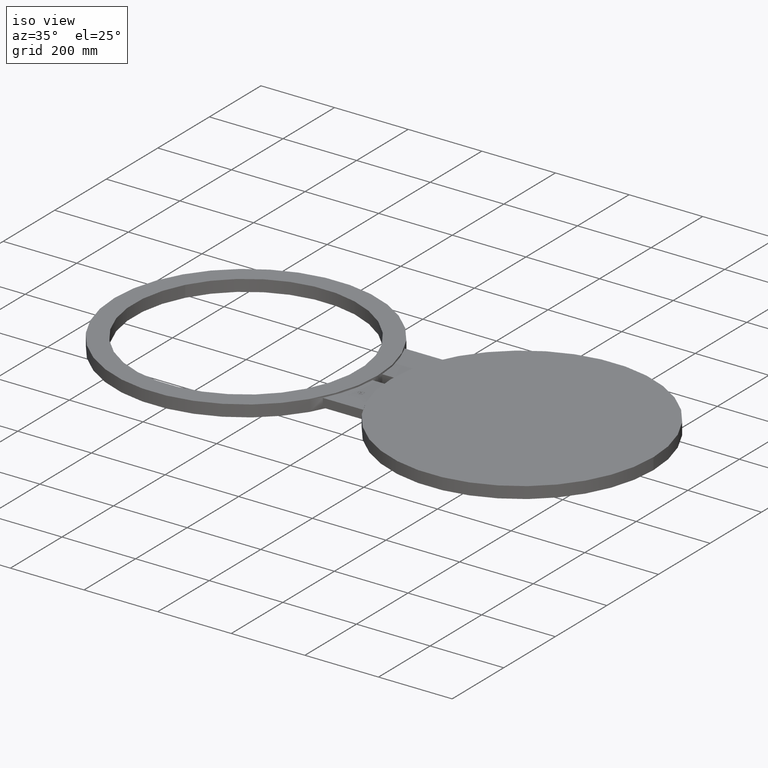
[diagram: clean part render]
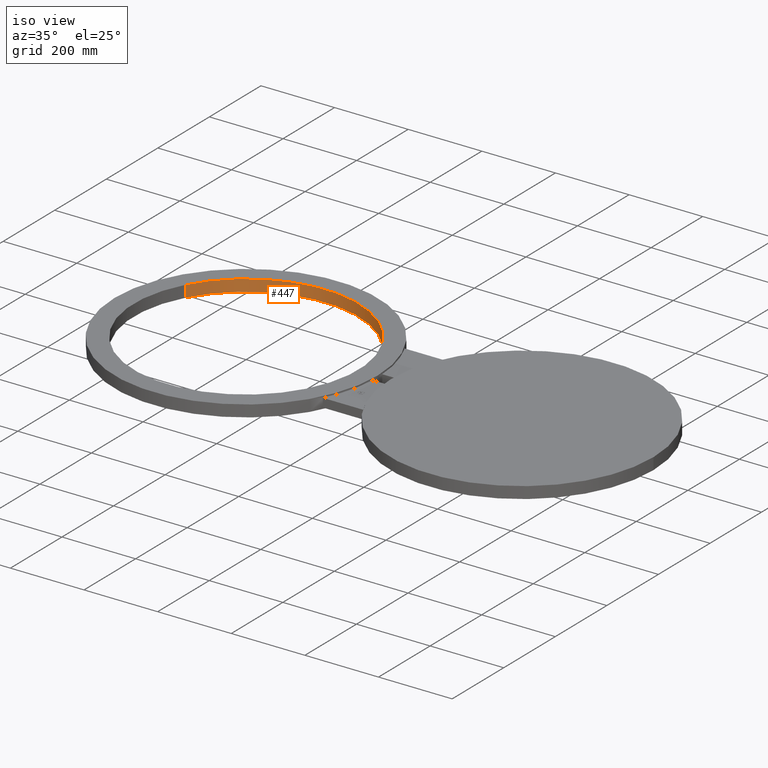
[diagram: same view with one face highlighted and labeled with its STEP entity id]
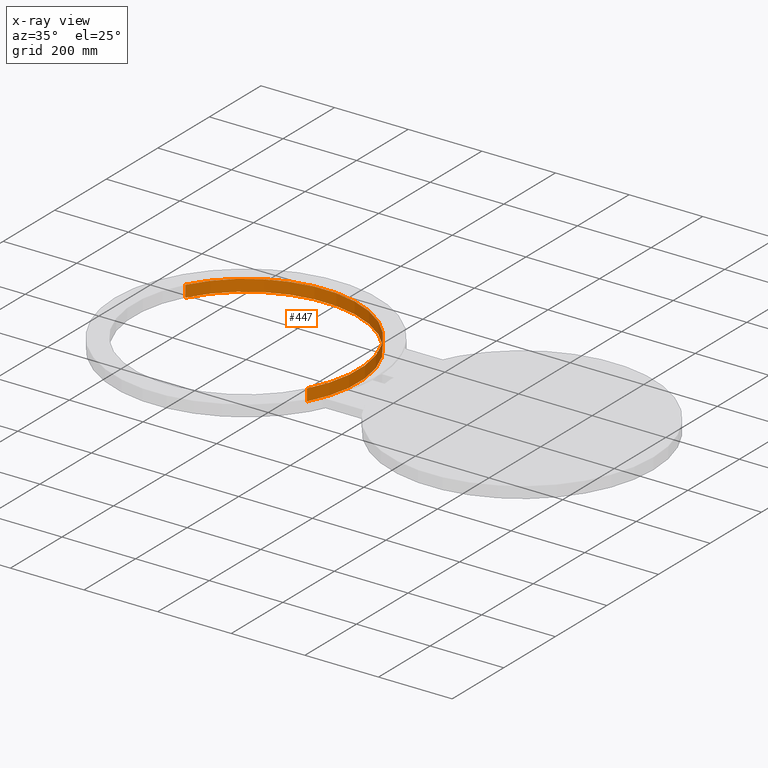
[diagram: x-ray of the same camera — body ghosted, the highlighted face saturated]
A machine part, iso view. The second image highlights one B-rep face of the part: STEP entity #447.
The next image is the same camera in x-ray: the body ghosted, the highlighted face saturated — about 0% of this face is hidden behind the body in this view.
In plain terms, the highlighted cylindrical surface (partial cylindrical patch) has radius 304.8 mm, axis along (0, -0, -1).
Its self-contained STEP definition (entity closure, byte-faithful):
#199=AXIS2_PLACEMENT_3D('Circle Axis2P3D',#197,#198,$) ;
#399=AXIS2_PLACEMENT_3D('Cylinder Axis2P3D',#396,#397,#398) ;
#433=AXIS2_PLACEMENT_3D('Circle Axis2P3D',#431,#432,$) ;
#197=CARTESIAN_POINT('Axis2P3D Location',(0.,-4.47585975282E-015,-0.625000000003)) ;
#201=CARTESIAN_POINT('Vertex',(10.5309907427,-5.75310646327,-0.625000000003)) ;
#203=CARTESIAN_POINT('Vertex',(-10.5309907427,5.75310646327,-0.625000000003)) ;
#396=CARTESIAN_POINT('Axis2P3D Location',(8.52336574023E-017,-6.99353086378E-017,0.621062992128)) ;
#401=CARTESIAN_POINT('Line Origine',(10.5309907427,-5.75310646327,-1.39870617276E-016)) ;
#405=CARTESIAN_POINT('Vertex',(10.5309907427,-5.75310646327,0.625000000002)) ;
#408=CARTESIAN_POINT('Line Origine',(-10.5309907427,5.75310646327,-1.39870617276E-016)) ;
#412=CARTESIAN_POINT('Vertex',(-10.5309907427,5.75310646327,0.625000000002)) ;
#431=CARTESIAN_POINT('Axis2P3D Location',(0.,-4.47585975282E-015,0.625000000002)) ;
#198=DIRECTION('Axis2P3D Direction',(0.,0.,0.0393700787402)) ;
#397=DIRECTION('Axis2P3D Direction',(0.,-0.,-0.0393700787402)) ;
#398=DIRECTION('Axis2P3D XDirection',(-0.0345504945626,0.0188750212049,0.)) ;
#402=DIRECTION('Vector Direction',(0.,0.,-0.0393700787402)) ;
#409=DIRECTION('Vector Direction',(0.,0.,-0.0393700787402)) ;
#432=DIRECTION('Axis2P3D Direction',(0.,0.,0.0393700787402)) ;
#403=VECTOR('Line Direction',#402,0.0393700787402) ;
#410=VECTOR('Line Direction',#409,0.0393700787402) ;
#442=ORIENTED_EDGE('',*,*,#414,.F.) ;
#443=ORIENTED_EDGE('',*,*,#205,.F.) ;
#444=ORIENTED_EDGE('',*,*,#407,.T.) ;
#445=ORIENTED_EDGE('',*,*,#435,.T.) ;
#447=ADVANCED_FACE('PartBody',(#446),#400,.F.) ;
#200=CIRCLE('generated circle',#199,12.) ;
#434=CIRCLE('generated circle',#433,12.) ;
#400=CYLINDRICAL_SURFACE('generated cylinder',#399,12.) ;
#205=EDGE_CURVE('',#202,#204,#200,.T.) ;
#407=EDGE_CURVE('',#202,#406,#404,.F.) ;
#414=EDGE_CURVE('',#204,#413,#411,.F.) ;
#435=EDGE_CURVE('',#406,#413,#434,.T.) ;
#441=EDGE_LOOP('',(#442,#443,#444,#445)) ;
#446=FACE_OUTER_BOUND('',#441,.T.) ;
#404=LINE('Line',#401,#403) ;
#411=LINE('Line',#408,#410) ;
#202=VERTEX_POINT('',#201) ;
#204=VERTEX_POINT('',#203) ;
#406=VERTEX_POINT('',#405) ;
#413=VERTEX_POINT('',#412) ;